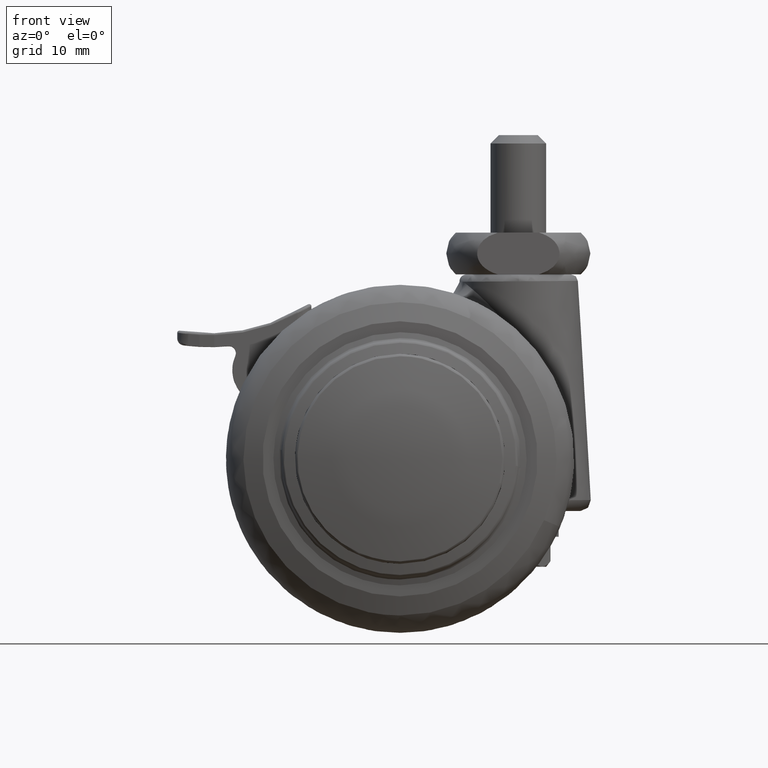
[diagram: clean part render]
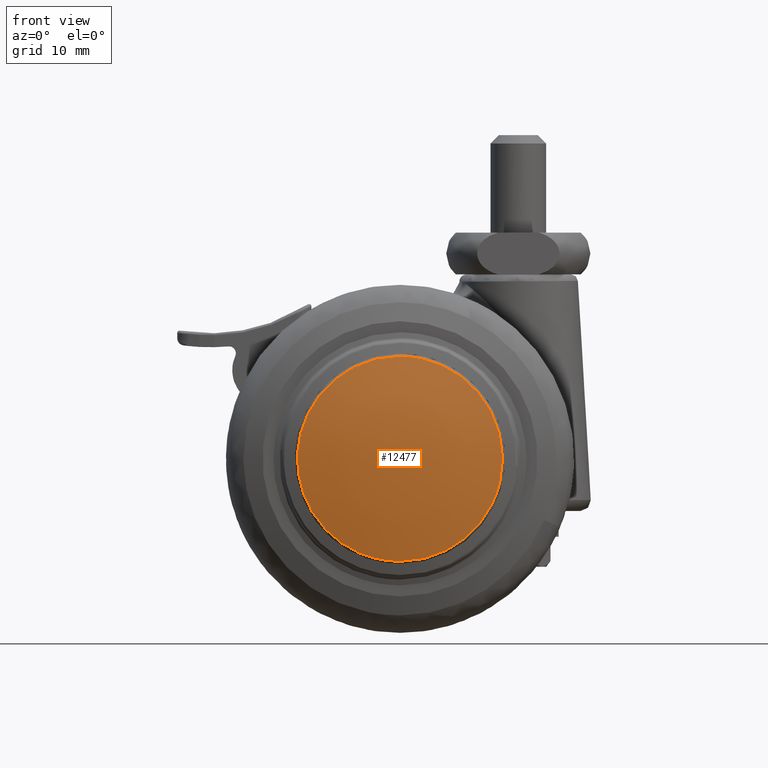
[diagram: same view with one face highlighted and labeled with its STEP entity id]
A machine part, front view. The second image highlights one B-rep face of the part: STEP entity #12477.
In plain terms, the highlighted face is a freeform B-spline surface patch.
Its self-contained STEP definition (entity closure, byte-faithful):
#9393=CARTESIAN_POINT('',(-5.926938161823629,-22.599255053341821,-13.481635294383310));
#9394=VERTEX_POINT('',#9393);
#9408=CARTESIAN_POINT('',(0.0,-22.599255056601049,14.726951002130299));
#9409=VERTEX_POINT('',#9408);
#9410=CARTESIAN_POINT('',(0.0,-22.599255056601049,14.726951002130299));
#9411=CARTESIAN_POINT('',(-14.726951002130306,-22.599255056601042,14.726951002130306));
#9412=CARTESIAN_POINT('',(-14.726951002130299,-22.599255056601049,2.621149E-016));
#9413=CARTESIAN_POINT('',(-14.726951002130306,-22.599255056601049,-9.612881172707649));
#9414=CARTESIAN_POINT('',(-5.926938161823629,-22.599255053341825,-13.481635294383311));
#9422=(BOUNDED_CURVE()B_SPLINE_CURVE(2,(#9410,#9411,#9412,#9413,#9414),.UNSPECIFIED.,.F.,.U.)B_SPLINE_CURVE_WITH_KNOTS((3,2,3),(0.0,0.250000000000000,0.431662010431912),.UNSPECIFIED.)CURVE()GEOMETRIC_REPRESENTATION_ITEM()RATIONAL_B_SPLINE_CURVE((1.0,0.707106781186547,1.0,0.787169716113897,0.883644850240147))REPRESENTATION_ITEM(''));
#9423=EDGE_CURVE('',#9409,#9394,#9422,.T.);
#9425=CARTESIAN_POINT('',(14.309172923474350,-22.599255056404651,-3.482909141406370));
#9426=VERTEX_POINT('',#9425);
#9427=CARTESIAN_POINT('',(14.309172923474343,-22.599255056404655,-3.482909141406371));
#9428=CARTESIAN_POINT('',(14.726951002130305,-22.599255056601042,-1.766510998526677));
#9429=CARTESIAN_POINT('',(14.726951002130299,-22.599255056601049,2.621149E-016));
#9430=CARTESIAN_POINT('',(14.726951002130306,-22.599255056601042,14.726951002130306));
#9431=CARTESIAN_POINT('',(0.0,-22.599255056601049,14.726951002130299));
#9439=(BOUNDED_CURVE()B_SPLINE_CURVE(2,(#9427,#9428,#9429,#9430,#9431),.UNSPECIFIED.,.F.,.U.)B_SPLINE_CURVE_WITH_KNOTS((3,2,3),(0.709598322307067,0.750000000000000,1.0),.UNSPECIFIED.)CURVE()GEOMETRIC_REPRESENTATION_ITEM()RATIONAL_B_SPLINE_CURVE((0.920631806224154,0.952666490300212,1.0,0.707106781186547,1.0))REPRESENTATION_ITEM(''));
#9440=EDGE_CURVE('',#9426,#9409,#9439,.T.);
#9485=CARTESIAN_POINT('',(0.0,-22.599255056601049,-14.726951002130299));
#9486=VERTEX_POINT('',#9485);
#9487=CARTESIAN_POINT('',(0.0,-22.599255056601049,-14.726951002130299));
#9488=CARTESIAN_POINT('',(11.572328774366369,-22.599255056601042,-14.726951002130292));
#9489=CARTESIAN_POINT('',(14.309172923474343,-22.599255056404655,-3.482909141406371));
#9497=(BOUNDED_CURVE()B_SPLINE_CURVE(2,(#9487,#9488,#9489),.UNSPECIFIED.,.F.,.U.)B_SPLINE_CURVE_WITH_KNOTS((3,3),(0.500000000000000,0.709598322307067),.UNSPECIFIED.)CURVE()GEOMETRIC_REPRESENTATION_ITEM()RATIONAL_B_SPLINE_CURVE((1.0,0.754440290886334,0.920631806224155))REPRESENTATION_ITEM(''));
#9498=EDGE_CURVE('',#9486,#9426,#9497,.T.);
#9500=CARTESIAN_POINT('',(-5.926938161823630,-22.599255053341821,-13.481635294383306));
#9501=CARTESIAN_POINT('',(-3.094296429752677,-22.599255056601042,-14.726951002130303));
#9502=CARTESIAN_POINT('',(0.0,-22.599255056601049,-14.726951002130299));
#9510=(BOUNDED_CURVE()B_SPLINE_CURVE(2,(#9500,#9501,#9502),.UNSPECIFIED.,.F.,.U.)B_SPLINE_CURVE_WITH_KNOTS((3,3),(0.431662010431912,0.500000000000000),.UNSPECIFIED.)CURVE()GEOMETRIC_REPRESENTATION_ITEM()RATIONAL_B_SPLINE_CURVE((0.883644850240147,0.919937065072650,1.0))REPRESENTATION_ITEM(''));
#9511=EDGE_CURVE('',#9394,#9486,#9510,.T.);
#12447=CARTESIAN_POINT('',(-15.825335308012173,-20.006889155389683,-15.830162376174354));
#12448=CARTESIAN_POINT('',(-8.068882149980617,-22.208393669579205,-16.142686665695969));
#12449=CARTESIAN_POINT('',(8.071201834484377,-22.208393669579205,-16.142686665695969));
#12450=CARTESIAN_POINT('',(15.829708624642203,-20.005647696723457,-15.829986139430286));
#12451=CARTESIAN_POINT('',(-16.137958689881803,-22.209763421742831,-8.071440557454837));
#12452=CARTESIAN_POINT('',(-8.231490096306130,-24.499999999999989,-8.234000878099863));
#12453=CARTESIAN_POINT('',(8.233856528194007,-24.499999999999989,-8.234000878099863));
#12454=CARTESIAN_POINT('',(16.142414849529722,-22.208472429815654,-8.071348923226470));
#12455=CARTESIAN_POINT('',(-16.137958689881803,-22.209763421742831,8.071440443190298));
#12456=CARTESIAN_POINT('',(-8.231490096306130,-24.499999999999989,8.234000761534015));
#12457=CARTESIAN_POINT('',(8.233856528194007,-24.499999999999989,8.234000761534015));
#12458=CARTESIAN_POINT('',(16.142414849529722,-22.208472429815654,8.071348808963228));
#12459=CARTESIAN_POINT('',(-15.825335316692101,-20.006889216552068,15.830162160754906));
#12460=CARTESIAN_POINT('',(-8.068882154493638,-22.208393733180419,16.142686446198443));
#12461=CARTESIAN_POINT('',(8.071201838998693,-22.208393733180419,16.142686446198443));
#12462=CARTESIAN_POINT('',(15.829708633324433,-20.005647757884482,15.829985924013140));
#12470=(BOUNDED_SURFACE()B_SPLINE_SURFACE(2,2,((#12447,#12451,#12455,#12459),(#12448,#12452,#12456,#12460),(#12449,#12453,#12457,#12461),(#12450,#12454,#12458,#12462)),.UNSPECIFIED.,.F.,.F.,.U.)B_SPLINE_SURFACE_WITH_KNOTS((3,1,3),(3,1,3),(13.227592718315121,29.153157823789741,45.083301294136049),(13.222735077905661,29.153157823789741,45.083580344152452),.UNSPECIFIED.)GEOMETRIC_REPRESENTATION_ITEM()RATIONAL_B_SPLINE_SURFACE(((1.040292661873473,1.020140186809018,1.020140186809018,1.040292661302890),(1.020152475064455,1.0,1.0,1.020152474493872),(1.020152475064455,1.0,1.0,1.020152474493872),(1.040304243550803,1.020151768486348,1.020151768486348,1.040304242980220)))REPRESENTATION_ITEM('')SURFACE());
#12471=ORIENTED_EDGE('',*,*,#9423,.T.);
#12472=ORIENTED_EDGE('',*,*,#9511,.T.);
#12473=ORIENTED_EDGE('',*,*,#9498,.T.);
#12474=ORIENTED_EDGE('',*,*,#9440,.T.);
#12475=EDGE_LOOP('',(#12471,#12472,#12473,#12474));
#12476=FACE_OUTER_BOUND('',#12475,.T.);
#12477=ADVANCED_FACE('',(#12476),#12470,.T.);